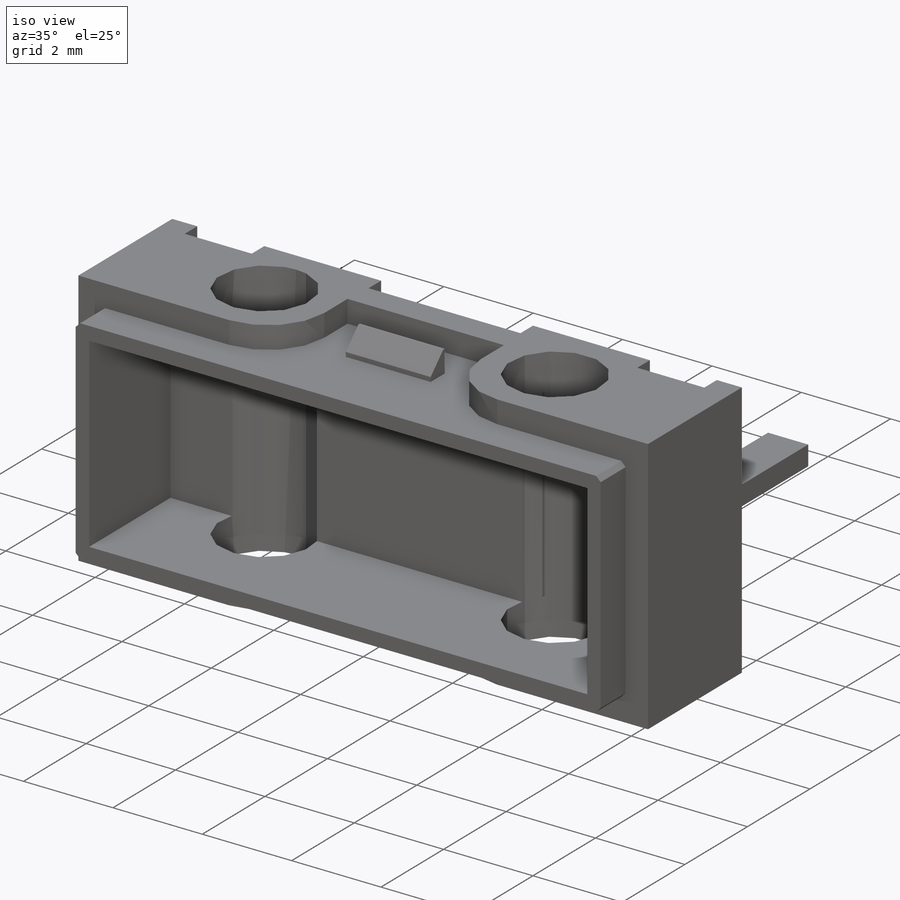
[diagram: iso view]
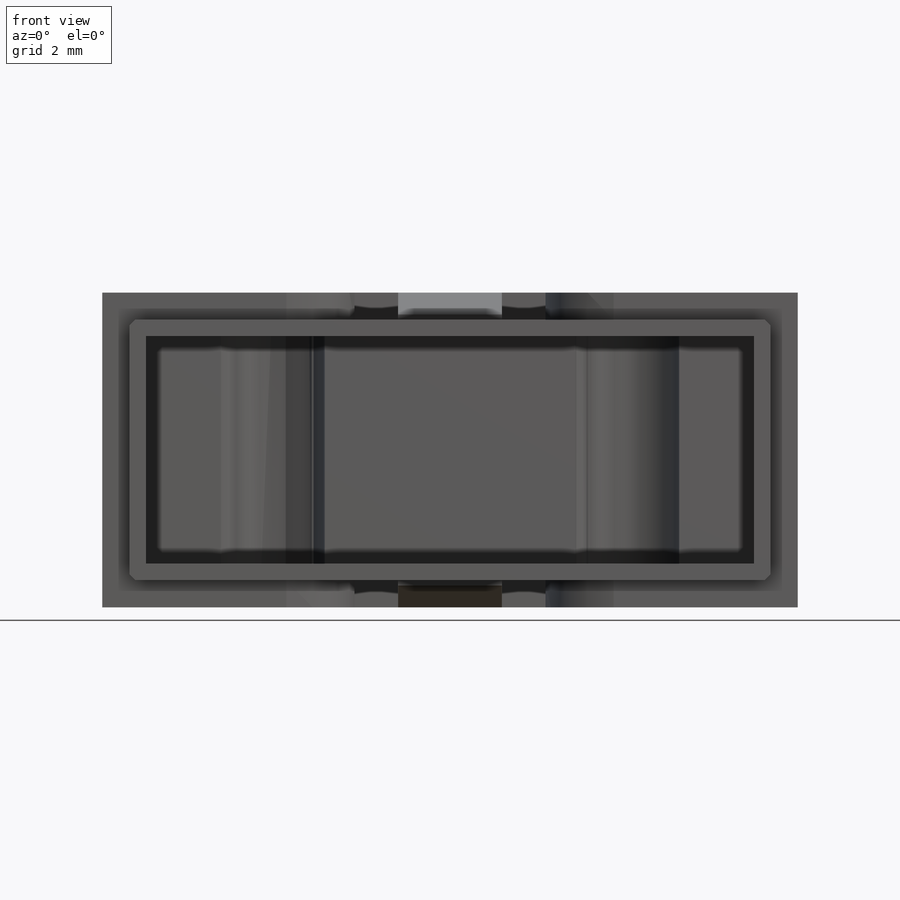
[diagram: front view]
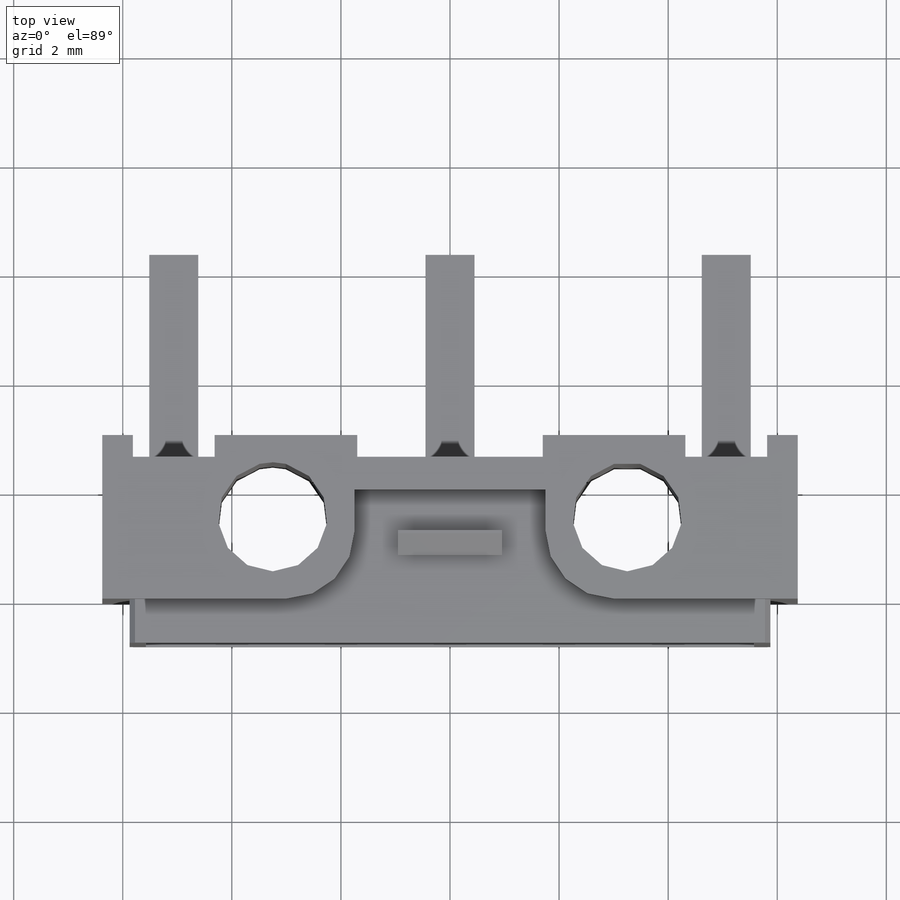
[diagram: top view]
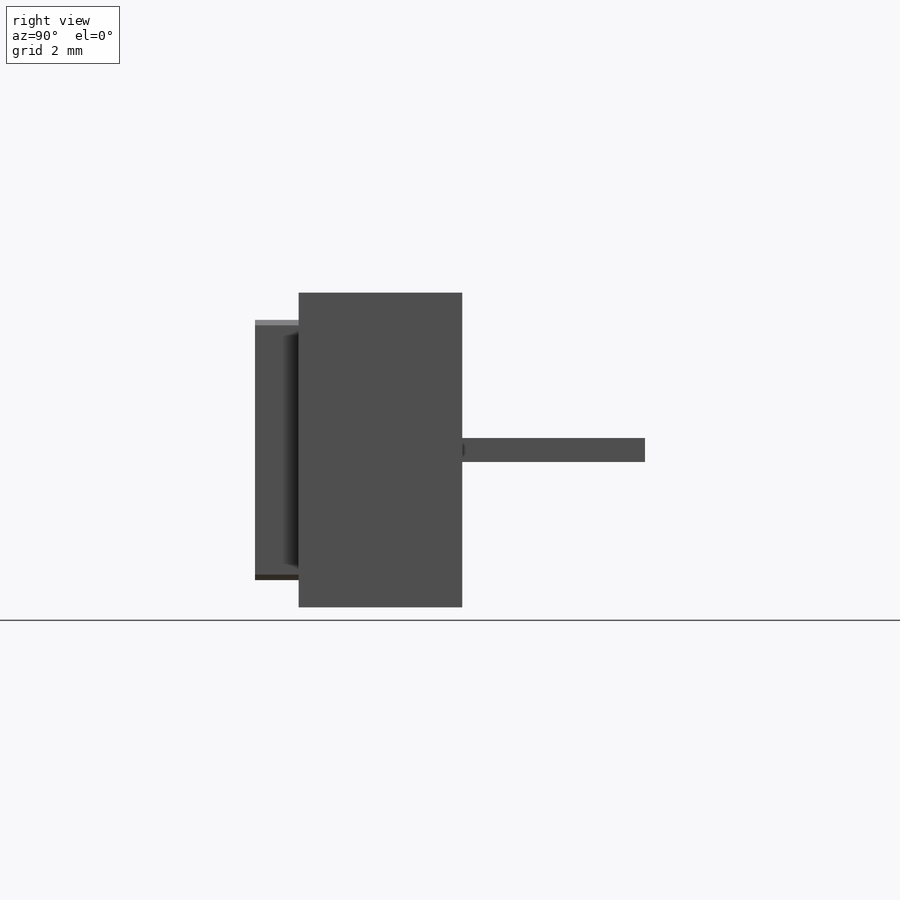
[diagram: right view]
SOLIDWORKS PART (.sldprt)
format: sldprt  version: not decoded by parser v0  size: 580,096 bytes
history: native  units: mm
features: sketch x7, extrude x4, plane x3, shell x3, mirror x3, chamfer x2, material x1, cut_extrude x1 + 1 further entry (+10 scaffold rows collapsed)
feature tree (35):
  scaffold x10  (default folders/planes/origin — collapsed)
  material  "Matériau <non spécifié>"
  "Corps de surface"
  plane  "Face"
  plane  "Dessus"
  plane  "Droite"
  sketch  "Esquisse1"  dims[D1=12.75mm D2=5.77mm]
  extrude  "Base-Extrusion"  Depth=3mm
  sketch  "Esquisse2"  dims[D1=0.4mm D2=1.5mm D3=3.4mm D4=0.56mm]
  cut_extrude  "Enlèv. mat.-Extru.1"  [1 undecoded]
  shell  "Coque1"  Thickness=0.8mm
  sketch  "Esquisse3"  dims[D1=0.9mm D2=0.44mm]
  extrude  "Boss.-Extru.1"  Depth=3.75mm
  sketch  "Esquisse4"  dims[D1=0.5mm D2=0.5mm D3=0.5mm D4=0.5mm]
  extrude  "Boss.-Extru.2"  Depth=0.8mm
  sketch  "Esquisse5"  dims[D4=~1.502081mm D1=1.75mm D2=2.0mm D3=0.75mm]
  shell  "Enlèv. mat.-Extru.2"  Thickness=0.5mm
  mirror  "Symétrie1"
  mirror  "Symétrie2"
  chamfer  "Chanfrein1"  Distance=0.1mm Angle=45deg
  sketch  "Esquisse6"  dims[D1=1.9mm D2=0.45mm D3=0.75mm]
  extrude  "Boss.-Extru.3"  Depth=0.5mm
  chamfer  "Chanfrein2"  Distance=0.4mm Angle=45deg
  mirror  "Symétrie3"
  sketch  "Esquisse7"  dims[D1=2.0mm D2=6.5mm]
  shell  "Enlèv. mat.-Extru.3"  [1 undecoded]
decode coverage: 15 of 20 modeling features carry decoded parameters; 1 rows unclassified (native names shown)
note: ~ marks probable driven/reference dimensions
note: 2 parameter values undecoded
note: suppression state not decoded; provenance and decode notes live in map.json
